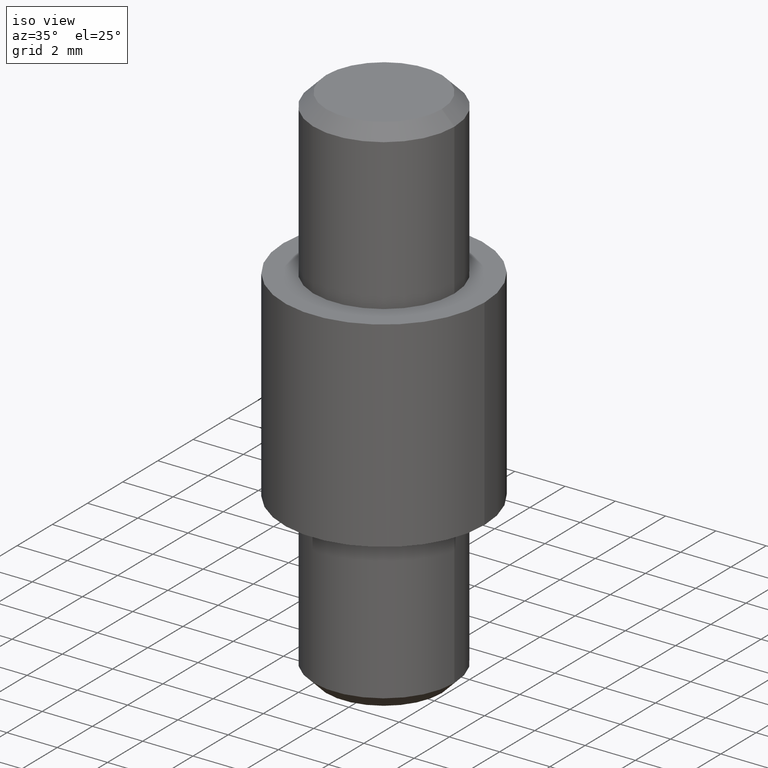
[diagram: clean part render]
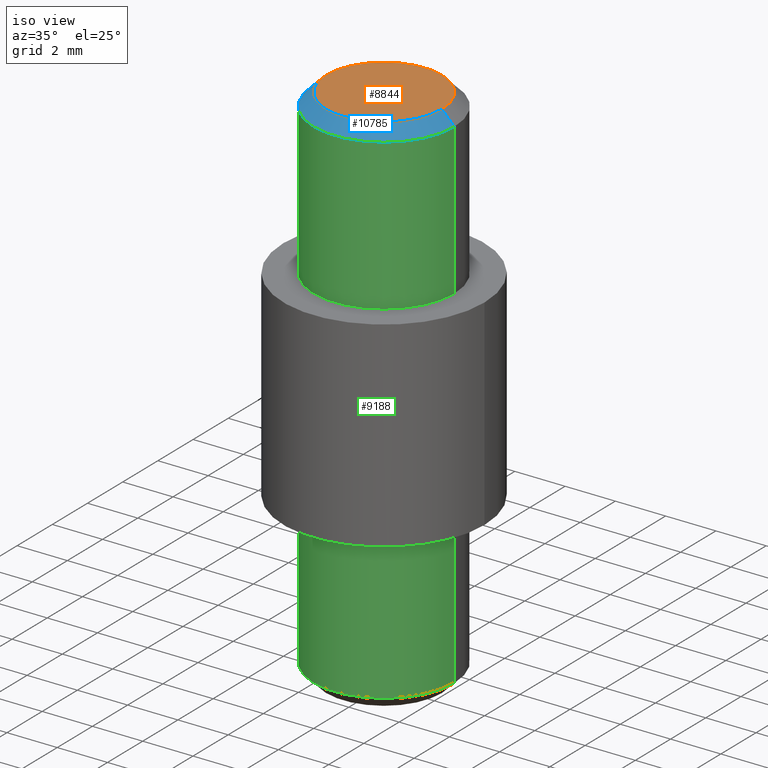
[diagram: same view with three faces highlighted in distinct colors, each labeled with its STEP entity id]
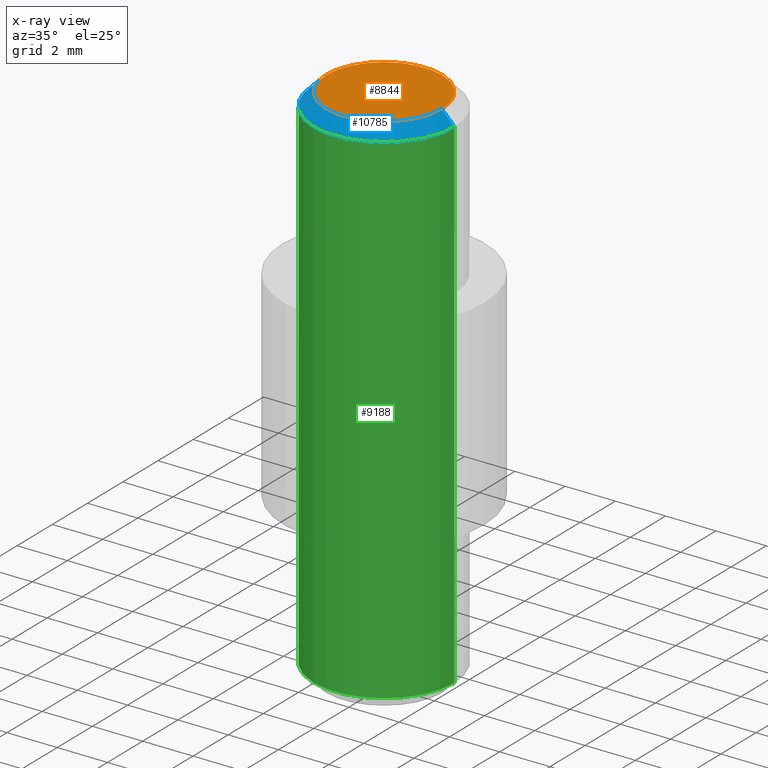
[diagram: x-ray of the same camera — body ghosted, the three highlighted faces saturated]
A machine part, iso view with three faces highlighted in distinct colors.
The next image is the same camera in x-ray (body ghosted, the three faces saturated) — at least one of them is partly hidden behind the body in this view.
Their STEP definitions:

[orange] entity #8844 — the highlighted planar face has unit normal (0, 0, 1).
#72 = FACE_OUTER_BOUND ( 'NONE', #11751, .T. ) ;
#124 = CARTESIAN_POINT ( 'NONE',  ( 0.0000000000000000000, 0.0000000000000000000, 21.00000000000000000 ) ) ;
#679 = CIRCLE ( 'NONE', #11600, 2.300000000000010000 ) ;
#1520 = CARTESIAN_POINT ( 'NONE',  ( 2.300000000000010000, 3.122849337825756800E-016, 21.00000000000000000 ) ) ;
#1756 = EDGE_CURVE ( 'NONE', #5919, #9448, #679, .T. ) ;
#1955 = DIRECTION ( 'NONE',  ( 1.000000000000000000, 0.0000000000000000000, 0.0000000000000000000 ) ) ;
#2828 = DIRECTION ( 'NONE',  ( 1.000000000000000000, 0.0000000000000000000, -0.0000000000000000000 ) ) ;
#3747 = DIRECTION ( 'NONE',  ( 0.0000000000000000000, 0.0000000000000000000, 1.000000000000000000 ) ) ;
#4311 = AXIS2_PLACEMENT_3D ( 'NONE', #9709, #5163, #6840 ) ;
#5163 = DIRECTION ( 'NONE',  ( 0.0000000000000000000, 0.0000000000000000000, 1.000000000000000000 ) ) ;
#5919 = VERTEX_POINT ( 'NONE', #7020 ) ;
#6475 = PLANE ( 'NONE',  #8869 ) ;
#6840 = DIRECTION ( 'NONE',  ( 1.000000000000000000, 0.0000000000000000000, 0.0000000000000000000 ) ) ;
#7020 = CARTESIAN_POINT ( 'NONE',  ( -2.300000000000010000, 0.0000000000000000000, 21.00000000000000000 ) ) ;
#7314 = DIRECTION ( 'NONE',  ( 0.0000000000000000000, 0.0000000000000000000, 1.000000000000000000 ) ) ;
#7965 = CIRCLE ( 'NONE', #4311, 2.300000000000010000 ) ;
#8239 = CARTESIAN_POINT ( 'NONE',  ( 0.0000000000000000000, 0.0000000000000000000, 21.00000000000000000 ) ) ;
#8844 = ADVANCED_FACE ( 'NONE', ( #72 ), #6475, .T. ) ;
#8869 = AXIS2_PLACEMENT_3D ( 'NONE', #8239, #3747, #2828 ) ;
#8999 = ORIENTED_EDGE ( 'NONE', *, *, #1756, .T. ) ;
#9448 = VERTEX_POINT ( 'NONE', #1520 ) ;
#9709 = CARTESIAN_POINT ( 'NONE',  ( 0.0000000000000000000, 0.0000000000000000000, 21.00000000000000000 ) ) ;
#10346 = EDGE_CURVE ( 'NONE', #9448, #5919, #7965, .T. ) ;
#10769 = ORIENTED_EDGE ( 'NONE', *, *, #10346, .T. ) ;
#11600 = AXIS2_PLACEMENT_3D ( 'NONE', #124, #7314, #1955 ) ;
#11751 = EDGE_LOOP ( 'NONE', ( #8999, #10769 ) ) ;

[blue] entity #10785 — the highlighted conical surface has half-angle 45 deg.
#124 = CARTESIAN_POINT ( 'NONE',  ( 0.0000000000000000000, 0.0000000000000000000, 21.00000000000000000 ) ) ;
#188 = ORIENTED_EDGE ( 'NONE', *, *, #1756, .F. ) ;
#679 = CIRCLE ( 'NONE', #11600, 2.300000000000010000 ) ;
#1062 = DIRECTION ( 'NONE',  ( 0.0000000000000000000, 0.0000000000000000000, -1.000000000000000000 ) ) ;
#1520 = CARTESIAN_POINT ( 'NONE',  ( 2.300000000000010000, 3.122849337825756800E-016, 21.00000000000000000 ) ) ;
#1756 = EDGE_CURVE ( 'NONE', #5919, #9448, #679, .T. ) ;
#1904 = DIRECTION ( 'NONE',  ( 0.7071067811865451300, 8.659560562354904500E-017, -0.7071067811865500200 ) ) ;
#1955 = DIRECTION ( 'NONE',  ( 1.000000000000000000, 0.0000000000000000000, 0.0000000000000000000 ) ) ;
#3622 = VERTEX_POINT ( 'NONE', #10341 ) ;
#3730 = CARTESIAN_POINT ( 'NONE',  ( -2.300000000000010000, 0.0000000000000000000, 21.00000000000000000 ) ) ;
#4366 = EDGE_LOOP ( 'NONE', ( #11148, #188, #5317, #9023 ) ) ;
#4612 = VERTEX_POINT ( 'NONE', #10709 ) ;
#4806 = EDGE_CURVE ( 'NONE', #5919, #3622, #11099, .T. ) ;
#5317 = ORIENTED_EDGE ( 'NONE', *, *, #4806, .T. ) ;
#5416 = CARTESIAN_POINT ( 'NONE',  ( 0.0000000000000000000, 0.0000000000000000000, 21.00000000000000000 ) ) ;
#5919 = VERTEX_POINT ( 'NONE', #7020 ) ;
#6093 = FACE_OUTER_BOUND ( 'NONE', #4366, .T. ) ;
#6345 = DIRECTION ( 'NONE',  ( -0.7071067811865451300, 0.0000000000000000000, -0.7071067811865500200 ) ) ;
#6379 = DIRECTION ( 'NONE',  ( 1.000000000000000000, 0.0000000000000000000, 0.0000000000000000000 ) ) ;
#6505 = CARTESIAN_POINT ( 'NONE',  ( 2.300000000000010000, 2.816687638038924900E-016, 21.00000000000000000 ) ) ;
#6954 = CIRCLE ( 'NONE', #9911, 2.799999999999999800 ) ;
#7020 = CARTESIAN_POINT ( 'NONE',  ( -2.300000000000010000, 0.0000000000000000000, 21.00000000000000000 ) ) ;
#7314 = DIRECTION ( 'NONE',  ( 0.0000000000000000000, 0.0000000000000000000, 1.000000000000000000 ) ) ;
#7845 = EDGE_CURVE ( 'NONE', #9448, #4612, #10453, .T. ) ;
#8002 = VECTOR ( 'NONE', #1904, 1000.000000000000100 ) ;
#8189 = AXIS2_PLACEMENT_3D ( 'NONE', #5416, #10809, #8991 ) ;
#8991 = DIRECTION ( 'NONE',  ( -1.000000000000000000, 0.0000000000000000000, 0.0000000000000000000 ) ) ;
#9023 = ORIENTED_EDGE ( 'NONE', *, *, #10536, .F. ) ;
#9448 = VERTEX_POINT ( 'NONE', #1520 ) ;
#9846 = VECTOR ( 'NONE', #6345, 1000.000000000000100 ) ;
#9911 = AXIS2_PLACEMENT_3D ( 'NONE', #10926, #1062, #6379 ) ;
#10341 = CARTESIAN_POINT ( 'NONE',  ( -2.799999999999999800, 0.0000000000000000000, 20.50000000000000700 ) ) ;
#10399 = CONICAL_SURFACE ( 'NONE', #8189, 2.300000000000010000, 0.7853981633974447300 ) ;
#10453 = LINE ( 'NONE', #6505, #8002 ) ;
#10536 = EDGE_CURVE ( 'NONE', #4612, #3622, #6954, .T. ) ;
#10709 = CARTESIAN_POINT ( 'NONE',  ( 2.799999999999999800, 3.429011037612588300E-016, 20.50000000000000700 ) ) ;
#10785 = ADVANCED_FACE ( 'NONE', ( #6093 ), #10399, .T. ) ;
#10809 = DIRECTION ( 'NONE',  ( 0.0000000000000000000, 0.0000000000000000000, -1.000000000000000000 ) ) ;
#10926 = CARTESIAN_POINT ( 'NONE',  ( 0.0000000000000000000, 0.0000000000000000000, 20.50000000000000700 ) ) ;
#11099 = LINE ( 'NONE', #3730, #9846 ) ;
#11148 = ORIENTED_EDGE ( 'NONE', *, *, #7845, .F. ) ;
#11600 = AXIS2_PLACEMENT_3D ( 'NONE', #124, #7314, #1955 ) ;

[green] entity #9188 — the highlighted cylindrical surface (partial cylindrical patch) has radius 2.8 mm, axis along (-0, -0, -1).
#2 = VERTEX_POINT ( 'NONE', #4767 ) ;
#78 = CARTESIAN_POINT ( 'NONE',  ( 0.0000000000000000000, 0.0000000000000000000, 21.00000000000000000 ) ) ;
#356 = FACE_OUTER_BOUND ( 'NONE', #5901, .T. ) ;
#513 = DIRECTION ( 'NONE',  ( -0.0000000000000000000, -0.0000000000000000000, -1.000000000000000000 ) ) ;
#869 = ORIENTED_EDGE ( 'NONE', *, *, #3122, .F. ) ;
#900 = EDGE_CURVE ( 'NONE', #2094, #2, #3085, .T. ) ;
#999 = VECTOR ( 'NONE', #513, 1000.000000000000000 ) ;
#1015 = EDGE_CURVE ( 'NONE', #3622, #2094, #4339, .T. ) ;
#1062 = DIRECTION ( 'NONE',  ( 0.0000000000000000000, 0.0000000000000000000, -1.000000000000000000 ) ) ;
#1370 = ORIENTED_EDGE ( 'NONE', *, *, #900, .T. ) ;
#2094 = VERTEX_POINT ( 'NONE', #2441 ) ;
#2306 = VECTOR ( 'NONE', #3420, 1000.000000000000000 ) ;
#2441 = CARTESIAN_POINT ( 'NONE',  ( -2.799999999999999800, 0.0000000000000000000, 0.5000000000000213200 ) ) ;
#3085 = CIRCLE ( 'NONE', #9681, 2.799999999999999800 ) ;
#3122 = EDGE_CURVE ( 'NONE', #4612, #2, #4383, .T. ) ;
#3420 = DIRECTION ( 'NONE',  ( -0.0000000000000000000, -0.0000000000000000000, -1.000000000000000000 ) ) ;
#3622 = VERTEX_POINT ( 'NONE', #10341 ) ;
#4122 = CARTESIAN_POINT ( 'NONE',  ( -2.799999999999999800, 0.0000000000000000000, 21.00000000000000000 ) ) ;
#4339 = LINE ( 'NONE', #4122, #999 ) ;
#4383 = LINE ( 'NONE', #7951, #2306 ) ;
#4436 = CYLINDRICAL_SURFACE ( 'NONE', #11023, 2.799999999999999800 ) ;
#4612 = VERTEX_POINT ( 'NONE', #10709 ) ;
#4691 = DIRECTION ( 'NONE',  ( -1.000000000000000000, 0.0000000000000000000, 0.0000000000000000000 ) ) ;
#4767 = CARTESIAN_POINT ( 'NONE',  ( 2.799999999999999800, 3.429011037612588300E-016, 0.5000000000000213200 ) ) ;
#5711 = CARTESIAN_POINT ( 'NONE',  ( 0.0000000000000000000, 0.0000000000000000000, 0.5000000000000213200 ) ) ;
#5901 = EDGE_LOOP ( 'NONE', ( #869, #6976, #7748, #1370 ) ) ;
#6379 = DIRECTION ( 'NONE',  ( 1.000000000000000000, 0.0000000000000000000, 0.0000000000000000000 ) ) ;
#6633 = DIRECTION ( 'NONE',  ( -0.0000000000000000000, -0.0000000000000000000, 1.000000000000000000 ) ) ;
#6757 = DIRECTION ( 'NONE',  ( 1.000000000000000000, 0.0000000000000000000, 0.0000000000000000000 ) ) ;
#6954 = CIRCLE ( 'NONE', #9911, 2.799999999999999800 ) ;
#6976 = ORIENTED_EDGE ( 'NONE', *, *, #10536, .T. ) ;
#7748 = ORIENTED_EDGE ( 'NONE', *, *, #1015, .T. ) ;
#7951 = CARTESIAN_POINT ( 'NONE',  ( 2.799999999999999800, 3.429011037612588300E-016, 21.00000000000000000 ) ) ;
#8196 = DIRECTION ( 'NONE',  ( -0.0000000000000000000, -0.0000000000000000000, -1.000000000000000000 ) ) ;
#9188 = ADVANCED_FACE ( 'NONE', ( #356 ), #4436, .T. ) ;
#9681 = AXIS2_PLACEMENT_3D ( 'NONE', #5711, #6633, #6757 ) ;
#9911 = AXIS2_PLACEMENT_3D ( 'NONE', #10926, #1062, #6379 ) ;
#10341 = CARTESIAN_POINT ( 'NONE',  ( -2.799999999999999800, 0.0000000000000000000, 20.50000000000000700 ) ) ;
#10536 = EDGE_CURVE ( 'NONE', #4612, #3622, #6954, .T. ) ;
#10709 = CARTESIAN_POINT ( 'NONE',  ( 2.799999999999999800, 3.429011037612588300E-016, 20.50000000000000700 ) ) ;
#10926 = CARTESIAN_POINT ( 'NONE',  ( 0.0000000000000000000, 0.0000000000000000000, 20.50000000000000700 ) ) ;
#11023 = AXIS2_PLACEMENT_3D ( 'NONE', #78, #8196, #4691 ) ;